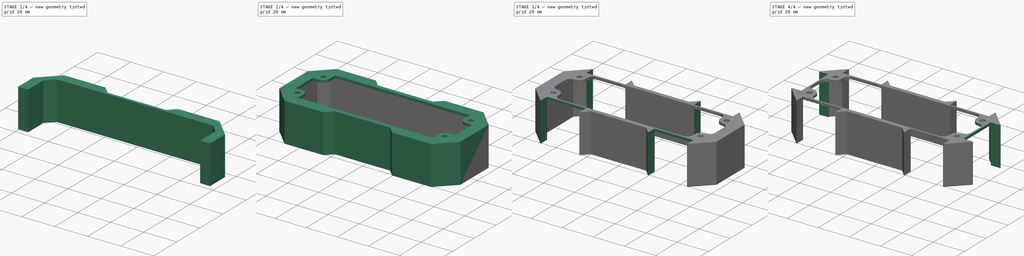
[diagram: build sequence overview — one tinted view per stage of 4, left to right]
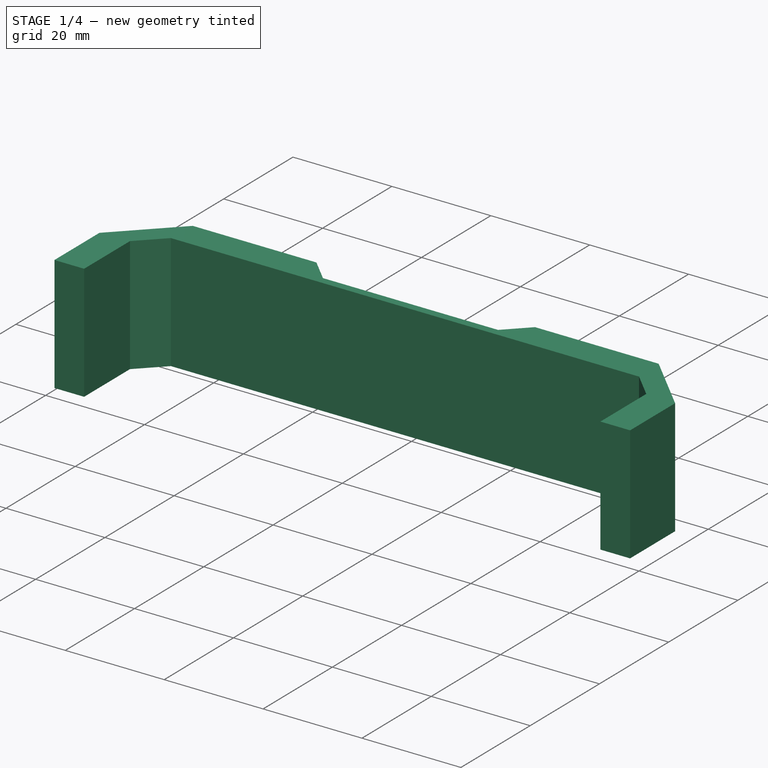
[diagram: stage 1 of 4 — iso view after this stage's code; geometry added in this stage tinted green]
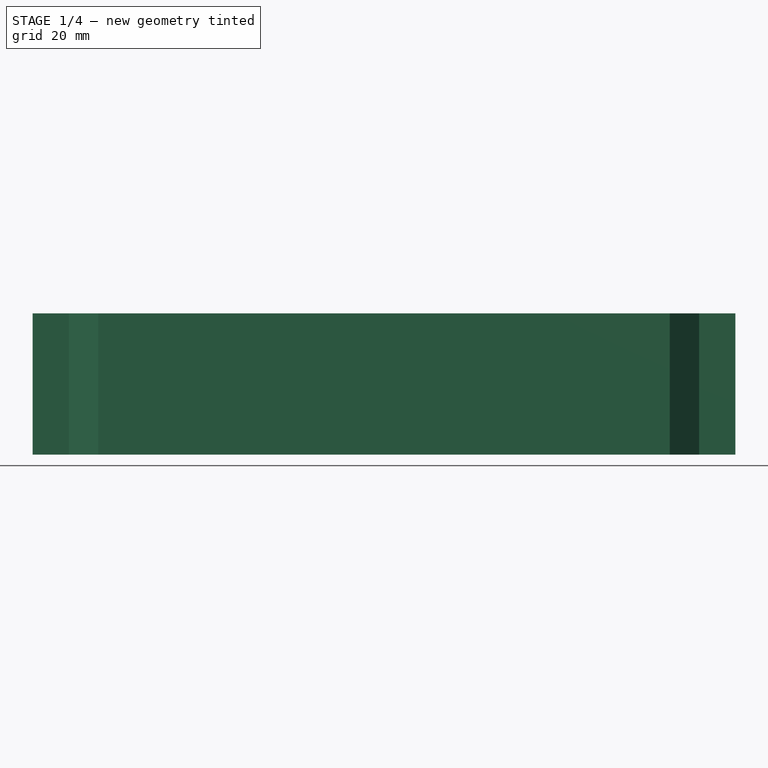
[diagram: stage 1 of 4 — front view after this stage's code; geometry added in this stage tinted green]
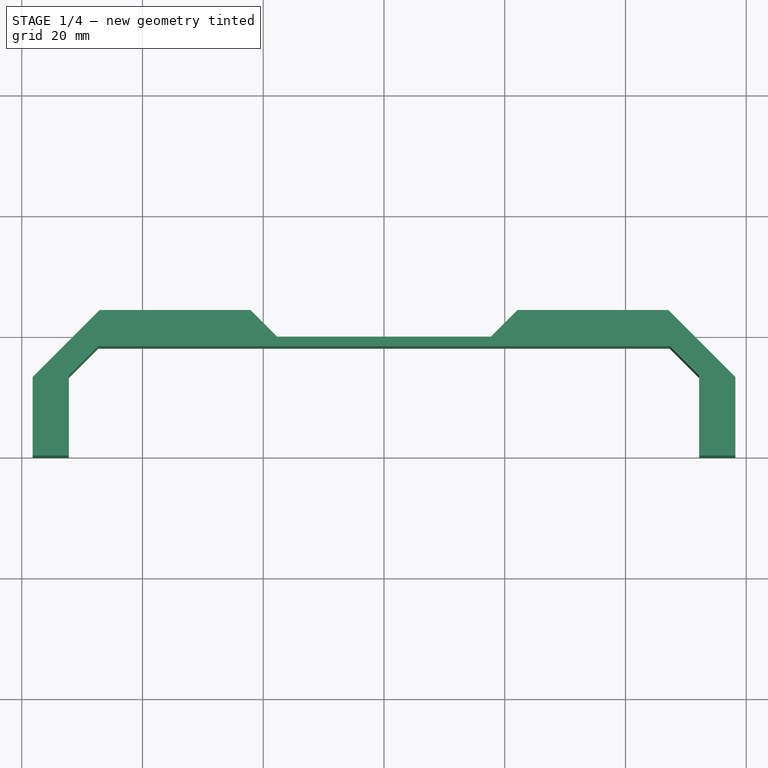
[diagram: stage 1 of 4 — top view after this stage's code; geometry added in this stage tinted green]
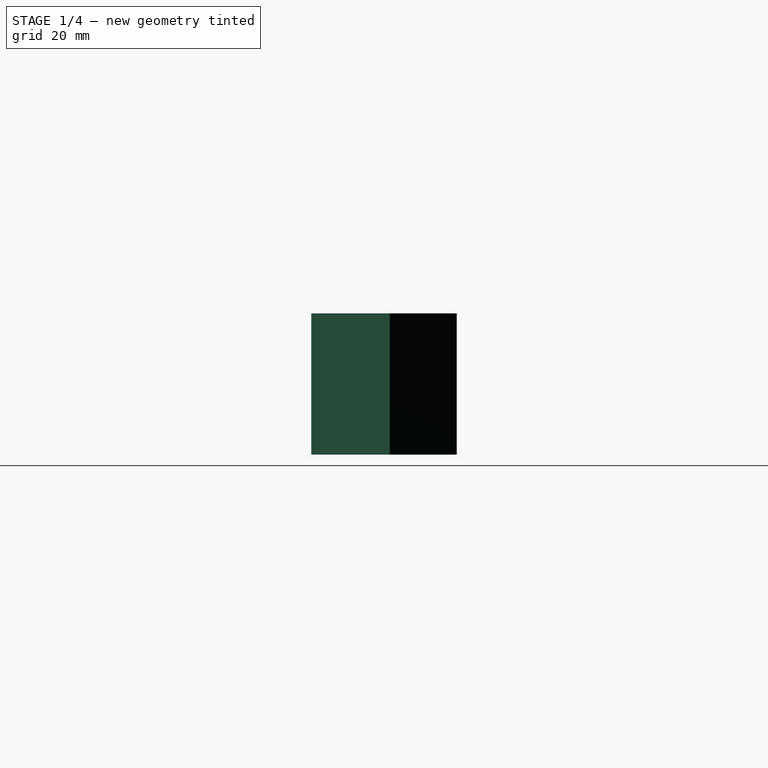
[diagram: stage 1 of 4 — right view after this stage's code; geometry added in this stage tinted green]
FCSTD DOCUMENT  (FreeCAD 1.1R20251111 (Git shallow))
Label: K93-10436-H7-L120_DockLink_Frame
License: All rights reserved
LicenseURL: https://en.wikipedia.org/wiki/All_rights_reserved
objects: Sketcher::SketchObject×6, PartDesign::Pocket×4, App::FeaturePython×3, Part::Feature×3, PartDesign::Pad×2, PartDesign::Mirrored×2, App::Point×1, App::DocumentObjectGroupPython×1, App::VarSet×1, PartDesign::Fillet×1, PartDesign::Body×1
note: 41 computed .brp shape members not serialized (recipe doc carries the construction recipe); baked Part::Feature solids carry a one-line shape summary decoded from their .brp

FEATURE [App::Point] Origin001
  Role = Origin
FEATURE [App::FeaturePython] Layer  label="0"  # WARN: FeaturePython — macro-defined, semantics opaque (R4)
FEATURE [App::FeaturePython] Layer001  label="none"  # WARN: FeaturePython — macro-defined, semantics opaque (R4)
FEATURE [App::FeaturePython] Layer002  label="Shape2DView"  # WARN: FeaturePython — macro-defined, semantics opaque (R4)
FEATURE [App::DocumentObjectGroupPython] LayerContainer  label="Layers"  # scripted group (container) (typed FeaturePython)
  Group = -> [Layer,Layer002,Layer001]
FEATURE [Part::Feature] Wire
  shape: bbox 3.2 x 3.2 x 2e-07 mm, 0 faces, 0 solids (baked)
FEATURE [Part::Feature] Wire001
  shape: bbox 3.2 x 3.2 x 2e-07 mm, 0 faces, 0 solids (baked)
FEATURE [Part::Feature] Wire002
  shape: bbox 98.17 x 35.99 x 2e-07 mm, 0 faces, 0 solids (baked)
FEATURE [App::VarSet] VarSet
  depth_feet = 26
  gap = 0.1
  thickness_wall = 1.6
FEATURE [Sketcher::SketchObject] Sketch  label="panel_reference"
  ArcFitTolerance = 1e-06
  ExternalTypes = [0]
  FullyConstrained = true
  MakeInternals = false
  expr: Constraints[35] = VarSet.gap
  expr: Constraints[46] = VarSet.thickness_wall
  expr: Constraints[49] = VarSet.gap * 3
  expr: Constraints[50] = VarSet.gap * 2
  sketch-geometry (16):
    g0: LineSegment [constr] StartX=52.0042 StartY=0 StartZ=0 EndX=52.0042 EndY=12.17 EndZ=0
    g1: ArcOfCircle [constr] CenterX=50.0143 CenterY=12.1873 CenterZ=0 NormalX=0 NormalY=0 NormalZ=1 AngleXU=0 Radius=1.99 StartAngle=6.27451 EndAngle=7.06367
    g2: LineSegment [constr] StartX=51.4283 StartY=13.5875 StartZ=0 EndX=47.5958 EndY=17.42 EndZ=0
    g3: ArcOfCircle [constr] CenterX=46.1874 CenterY=16 CenterZ=0 NormalX=0 NormalY=0 NormalZ=1 AngleXU=0 Radius=2 StartAngle=0.789489 EndAngle=1.57449
    g4: LineSegment [constr] StartX=46.18 StartY=18 StartZ=0 EndX=0 EndY=18 EndZ=0
    g5: Circle [constr] CenterX=47.32 CenterY=11.94 CenterZ=0 NormalX=0 NormalY=0 NormalZ=1 AngleXU=0 Radius=1.61
    g6: LineSegment StartX=52.2042 StartY=0 StartZ=0 EndX=58.2042 EndY=0 EndZ=0
    g7: LineSegment StartX=52.2042 StartY=0 StartZ=0 EndX=52.2042 EndY=13.2359 EndZ=0
    g8: LineSegment StartX=58.2042 StartY=0 StartZ=0 EndX=58.2042 EndY=13 EndZ=0
    g9: LineSegment StartX=47.3401 StartY=18.1 StartZ=0 EndX=52.2042 EndY=13.2359 EndZ=0
    g10: LineSegment StartX=47.1042 StartY=24.1 StartZ=0 EndX=58.2042 EndY=13 EndZ=0
    g11: LineSegment StartX=17.7042 StartY=19.7 StartZ=0 EndX=22.1042 EndY=24.1 EndZ=0
    g12: LineSegment StartX=22.1042 StartY=24.1 StartZ=0 EndX=47.1042 EndY=24.1 EndZ=0
    g13: LineSegment StartX=47.3401 StartY=18.1 StartZ=0 EndX=0 EndY=18.1 EndZ=0
    g14: LineSegment StartX=17.7042 StartY=19.7 StartZ=0 EndX=0 EndY=19.7 EndZ=0
    g15: LineSegment StartX=0 StartY=19.7 StartZ=0 EndX=0 EndY=18.1 EndZ=0
  constraints (52):
    c: Coincident(g3,g4)
    c: Coincident(g2,g3)
    c: Coincident(g1,g2)
    c: Coincident(g0,g1)
    c: PointOnObject(g4,g-2)
    c: Horizontal(g4)
    c: PointOnObject(g6,g-1)
    c: PointOnObject(g6,g-1)
    c: Distance(g4,g-1) = 18
    c: Vertical(g0)
    c: DistanceY(g-1,g0) = 12.17
    c: Distance(g1,g0) = 1.53
    c: Angle(g2,g0) = 2.35619
    c: Distance(g2,g2) = 5.42
    c: Distance(g3,g2) = 1.53
    c: DistanceX(g4,g4) = 46.18
    c: DistanceY(g-1,g2) = 17.42
    c: DistanceY(g-1,g5) = 11.94
    c: Diameter(g5) = 3.22
    c: DistanceX(g-1,g5) = 47.32
    c: Radius(g3) = 2
    c: Radius(g1) = 1.99
    c: PointOnObject(g0,g-1)
    c: Coincident(g7,g6)
    c: Vertical(g7)
    c: Coincident(g8,g6)
    c: Vertical(g8)
    c: Parallel(g2,g9)
    c: Parallel(g9,g10)
    c: Coincident(g9,g7)
    c: Coincident(g10,g8)
    c: Coincident(g12,g11)
    c: Horizontal(g12)
    c: Distance(g9,g12) = 6
    c: Coincident(g10,g12)
    c: Distance(g9,g4) = 0.1
    c: DistanceX(g12,g12) = 25
    c: Coincident(g13,g9)
    c: PointOnObject(g13,g-2)
    c: Horizontal(g13)
    c: Coincident(g14,g11)
    c: PointOnObject(g14,g-2)
    c: Horizontal(g14)
    c: Coincident(g15,g14)
    c: Coincident(g15,g13)
    c: Angle(g11,g14) = 2.35619
    c: DistanceY(g15,g15) = 1.6
    c: Distance(g6,g6) = 6
    c: DistanceY(g8,g8) = 13
    c: Distance(g9,g2) = 0.3
    c: Distance(g0,g7) = 0.2
    c: Distance(g9,g10) = 4.07586
FEATURE [PartDesign::Pad] Pad
  Direction = (0,0,1)
  Length = 23.4
  Length2 = 10
  Profile = -> Sketch
  ReferenceAxis = -> Sketch [N_Axis]
  Refine = true
  Reversed = true
  SideType = 0
  Suppressed = false
  Type = 0
  Type2 = 0
FEATURE [PartDesign::Mirrored] Mirrored
  BaseFeature = -> Pad
  MirrorPlane = -> YZ_Plane
  Refine = true
  Suppressed = false
  TransformMode = 1
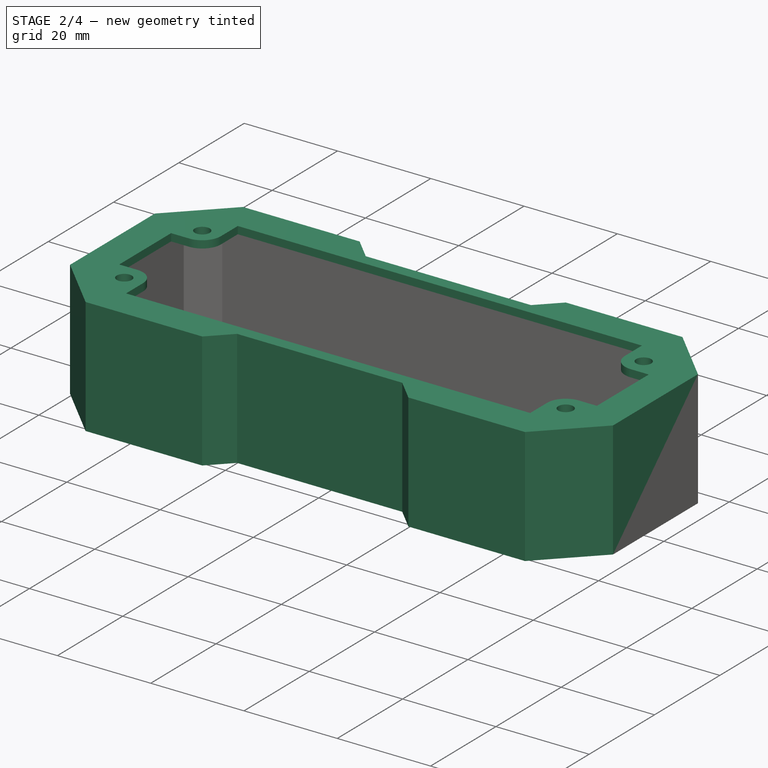
[diagram: stage 2 of 4 — iso view after this stage's code; geometry added in this stage tinted green]
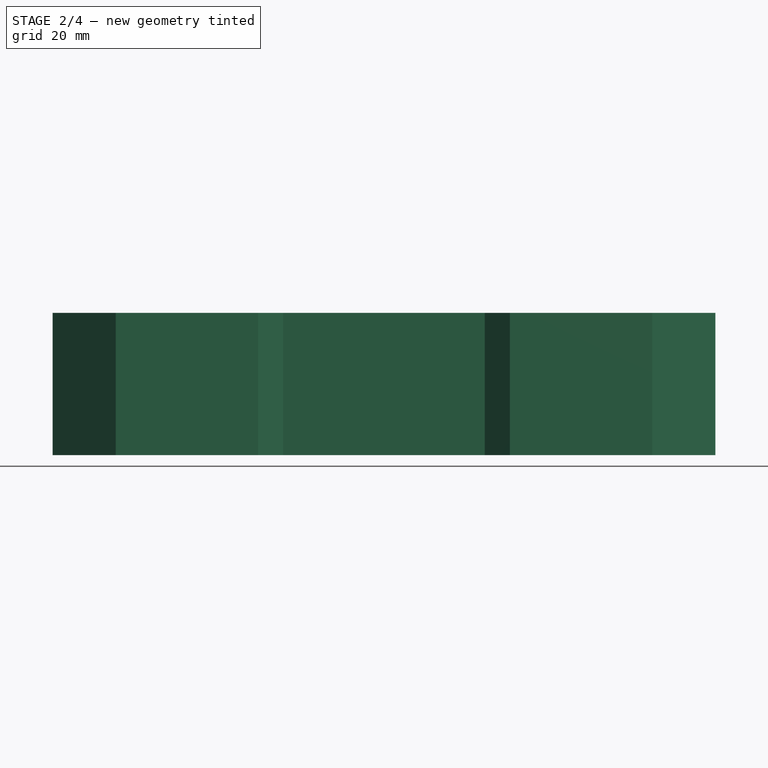
[diagram: stage 2 of 4 — front view after this stage's code; geometry added in this stage tinted green]
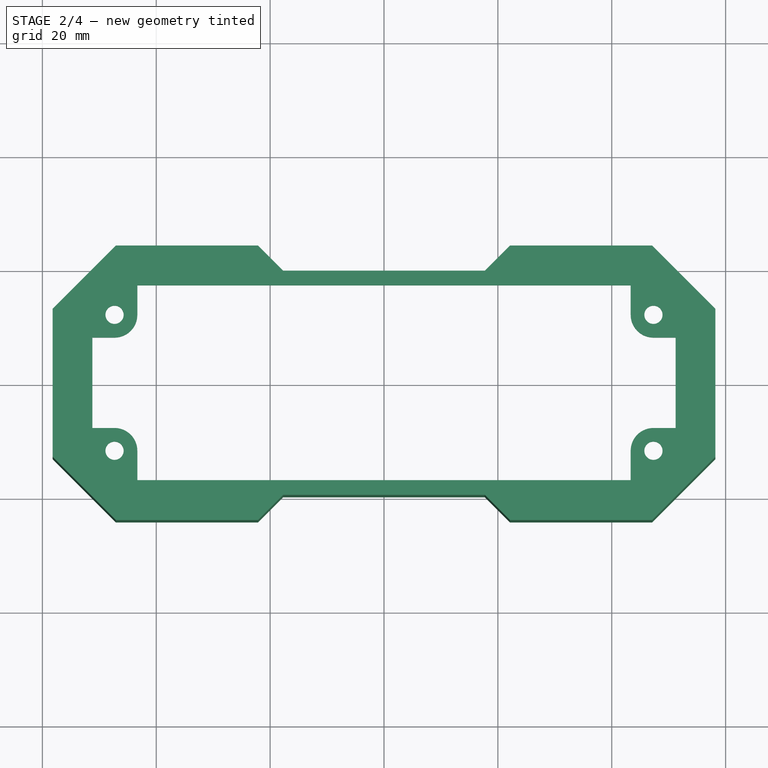
[diagram: stage 2 of 4 — top view after this stage's code; geometry added in this stage tinted green]
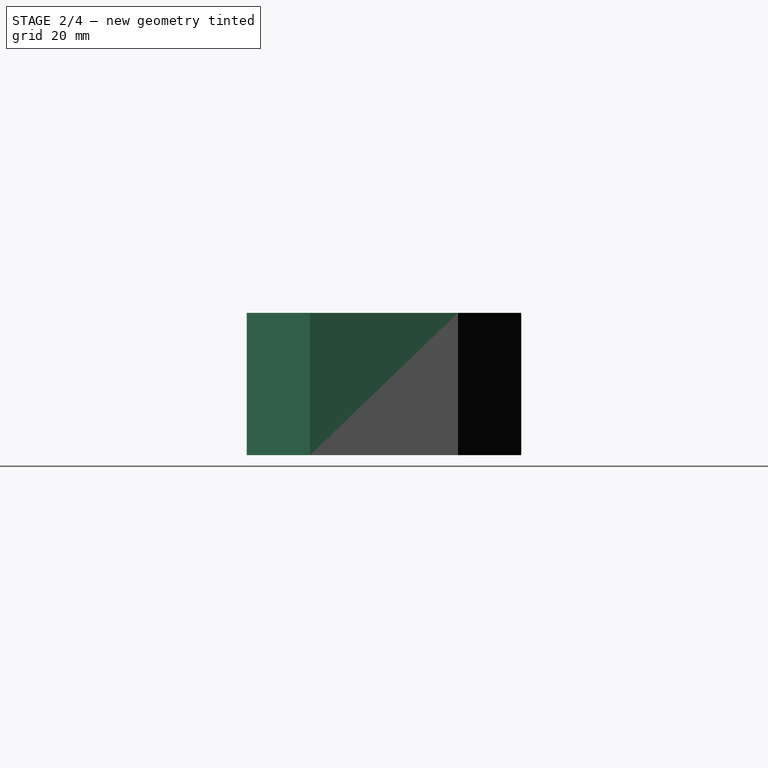
[diagram: stage 2 of 4 — right view after this stage's code; geometry added in this stage tinted green]
FEATURE [PartDesign::Mirrored] Mirrored001
  BaseFeature = -> Mirrored
  MirrorPlane = -> XZ_Plane
  Refine = true
  Suppressed = false
  TransformMode = 1
FEATURE [Sketcher::SketchObject] Sketch001  label="Sketch_Frontplate"
  ArcFitTolerance = 1e-06
  AttachmentSupport = -> [Mirrored001]
  ExternalGeometry = -> [Mirrored001]
  ExternalTypes = [0,0,0,0,0,0,0,0,0,0,0,0,0,0,0,0]
  FullyConstrained = true
  MakeInternals = false
  MapMode = 5
  Placement = pos=(0,0,-7.9e-15) rot=(0,0,1;0rad)
  sketch-geometry (25):
    g0: LineSegment [constr] StartX=-47.32 StartY=11.94 StartZ=0 EndX=-47.32 EndY=-11.94 EndZ=0
    g1: LineSegment [constr] StartX=-47.32 StartY=-11.94 StartZ=0 EndX=47.32 EndY=-11.94 EndZ=0
    g2: LineSegment [constr] StartX=47.32 StartY=-11.94 StartZ=0 EndX=47.32 EndY=11.94 EndZ=0
    g3: LineSegment [constr] StartX=47.32 StartY=11.94 StartZ=0 EndX=-47.32 EndY=11.94 EndZ=0
    g4: GeomPoint [constr] X=0 Y=0 Z=0
    g5: Circle CenterX=-47.32 CenterY=11.94 CenterZ=0 NormalX=0 NormalY=0 NormalZ=1 AngleXU=0 Radius=1.6
    g6: Circle CenterX=-47.32 CenterY=-11.94 CenterZ=0 NormalX=0 NormalY=0 NormalZ=1 AngleXU=0 Radius=1.6
    g7: Circle CenterX=47.32 CenterY=11.94 CenterZ=0 NormalX=0 NormalY=0 NormalZ=1 AngleXU=0 Radius=1.6
    g8: Circle CenterX=47.32 CenterY=-11.94 CenterZ=0 NormalX=0 NormalY=0 NormalZ=1 AngleXU=0 Radius=1.6
    g9: LineSegment StartX=-43.32 StartY=17.1 StartZ=0 EndX=43.32 EndY=17.1 EndZ=0
    g10: LineSegment StartX=-51.2042 StartY=7.94 StartZ=0 EndX=-51.2042 EndY=-7.94 EndZ=0
    g11: LineSegment StartX=51.2042 StartY=7.94 StartZ=0 EndX=51.2042 EndY=-7.94 EndZ=0
    g12: LineSegment StartX=-43.32 StartY=-17.1 StartZ=0 EndX=43.32 EndY=-17.1 EndZ=0
    g13: ArcOfCircle CenterX=-47.32 CenterY=11.94 CenterZ=0 NormalX=0 NormalY=0 NormalZ=1 AngleXU=0 Radius=4 StartAngle=4.71239 EndAngle=6.28319
    g14: ArcOfCircle CenterX=-47.32 CenterY=-11.94 CenterZ=0 NormalX=0 NormalY=0 NormalZ=1 AngleXU=0 Radius=4 StartAngle=0 EndAngle=1.5708
    g15: ArcOfCircle CenterX=47.32 CenterY=-11.94 CenterZ=0 NormalX=0 NormalY=0 NormalZ=1 AngleXU=0 Radius=4 StartAngle=1.5708 EndAngle=3.14159
    g16: ArcOfCircle CenterX=47.32 CenterY=11.94 CenterZ=0 NormalX=0 NormalY=0 NormalZ=1 AngleXU=0 Radius=4 StartAngle=3.14159 EndAngle=4.71239
    g17: LineSegment StartX=43.32 StartY=11.94 StartZ=0 EndX=43.32 EndY=17.1 EndZ=0
    g18: LineSegment StartX=-43.32 StartY=11.94 StartZ=0 EndX=-43.32 EndY=17.1 EndZ=0
    g19: LineSegment StartX=-47.32 StartY=7.94 StartZ=0 EndX=-51.2042 EndY=7.94 EndZ=0
    g20: LineSegment StartX=-47.32 StartY=-7.94 StartZ=0 EndX=-51.2042 EndY=-7.94 EndZ=0
    g21: LineSegment StartX=-43.32 StartY=-17.1 StartZ=0 EndX=-43.32 EndY=-11.94 EndZ=0
    g22: LineSegment StartX=47.32 StartY=7.94 StartZ=0 EndX=51.2042 EndY=7.94 EndZ=0
    g23: LineSegment StartX=47.32 StartY=-7.94 StartZ=0 EndX=51.2042 EndY=-7.94 EndZ=0
    g24: LineSegment StartX=43.32 StartY=-11.94 StartZ=0 EndX=43.32 EndY=-17.1 EndZ=0
  constraints (66):
    c: Coincident(g0,g1)
    c: Coincident(g1,g2)
    c: Coincident(g2,g3)
    c: Coincident(g3,g0)
    c: Vertical(g0)
    c: Vertical(g2)
    c: Horizontal(g1)
    c: Horizontal(g3)
    c: Symmetric(g2,g0,g4)
    c: Coincident(g4,g-1)
    c: Distance(g3,g-1) = 11.94
    c: Distance(g-2,g2) = 47.32
    c: Coincident(g5,g3)
    c: Coincident(g6,g0)
    c: Coincident(g7,g2)
    c: Coincident(g8,g1)
    c: Equal(g8,g7)
    c: Equal(g7,g6)
    c: Equal(g6,g5)
    c: Diameter(g5) = 3.2
    c: Vertical(g10)
    c: Vertical(g11)
    c: Symmetric(g9,g9,g-2)
    c: Symmetric(g12,g12,g-2)
    c: Coincident(g13,g3)
    c: PointOnObject(g13,g0)
    c: PointOnObject(g13,g3)
    c: Radius(g13) = 4
    c: Coincident(g14,g0)
    c: PointOnObject(g14,g0)
    c: PointOnObject(g14,g1)
    c: Coincident(g15,g1)
    c: PointOnObject(g15,g1)
    c: PointOnObject(g15,g2)
    c: Coincident(g16,g2)
    c: PointOnObject(g16,g2)
    c: PointOnObject(g16,g3)
    c: Coincident(g17,g16)
    c: PointOnObject(g17,g9)
    c: Vertical(g17)
    c: Vertical(g9,g17)
    c: Equal(g16,g15)
    c: Equal(g15,g14)
    c: Tangent(g18,g13) = -1.5708
    c: Coincident(g18,g9)
    c: Coincident(g19,g13)
    c: Coincident(g19,g10)
    c: Coincident(g20,g14)
    c: Coincident(g20,g10)
    c: Coincident(g21,g12)
    c: Coincident(g21,g14)
    c: Coincident(g22,g16)
    c: Coincident(g22,g11)
    c: Coincident(g23,g15)
    c: Coincident(g23,g11)
    c: Coincident(g24,g15)
    c: Coincident(g24,g12)
    c: Vertical(g24)
    c: Horizontal(g22)
    c: Horizontal(g23)
    c: Horizontal(g19)
    c: Horizontal(g20)
    c: Distance(g10,g-18) = 7
    c: Distance(g-6,g9) = 2.6
    c: Distance(g-14,g12) = 2.6
    c: Distance(g-10,g11) = 7
FEATURE [PartDesign::Pad] Pad001
  BaseFeature = -> Mirrored001
  Direction = (0,0,1)
  Length = 1.6
  Length2 = 10
  Profile = -> Sketch001
  ReferenceAxis = -> Sketch001 [N_Axis]
  Refine = true
  SideType = 0
  Suppressed = false
  Type = 0
  Type2 = 0
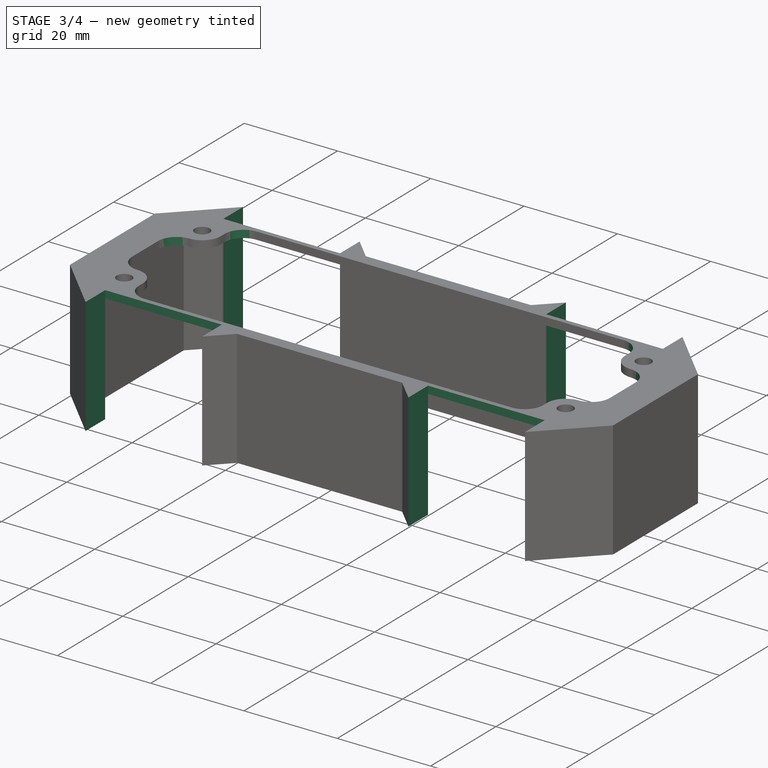
[diagram: stage 3 of 4 — iso view after this stage's code; geometry added in this stage tinted green]
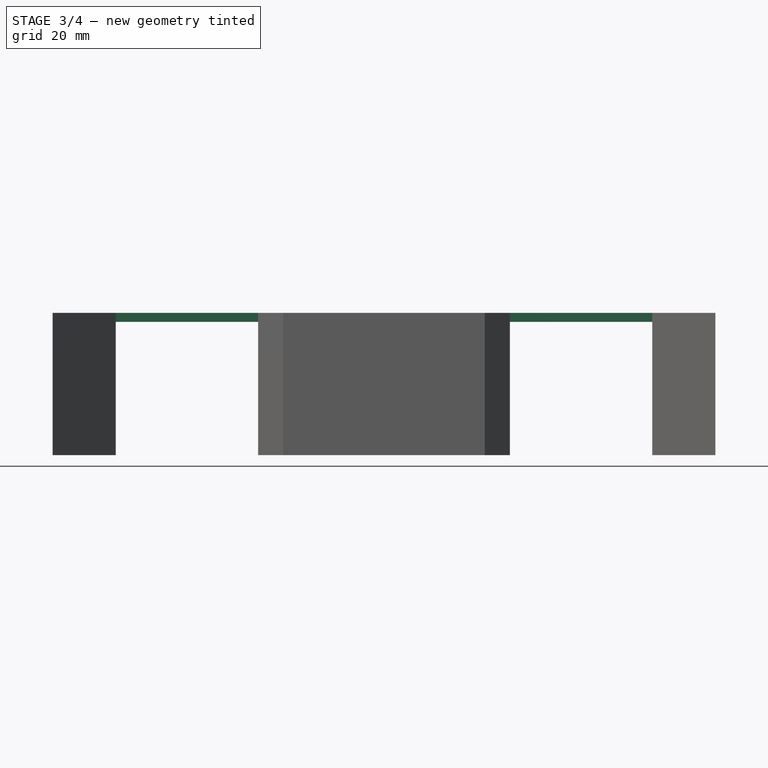
[diagram: stage 3 of 4 — front view after this stage's code; geometry added in this stage tinted green]
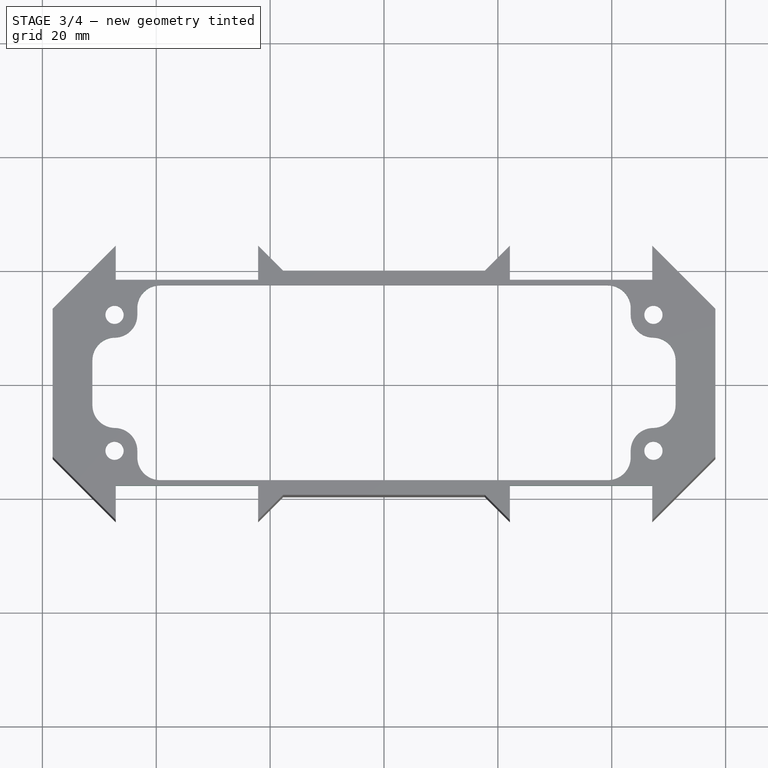
[diagram: stage 3 of 4 — top view after this stage's code; geometry added in this stage tinted green]
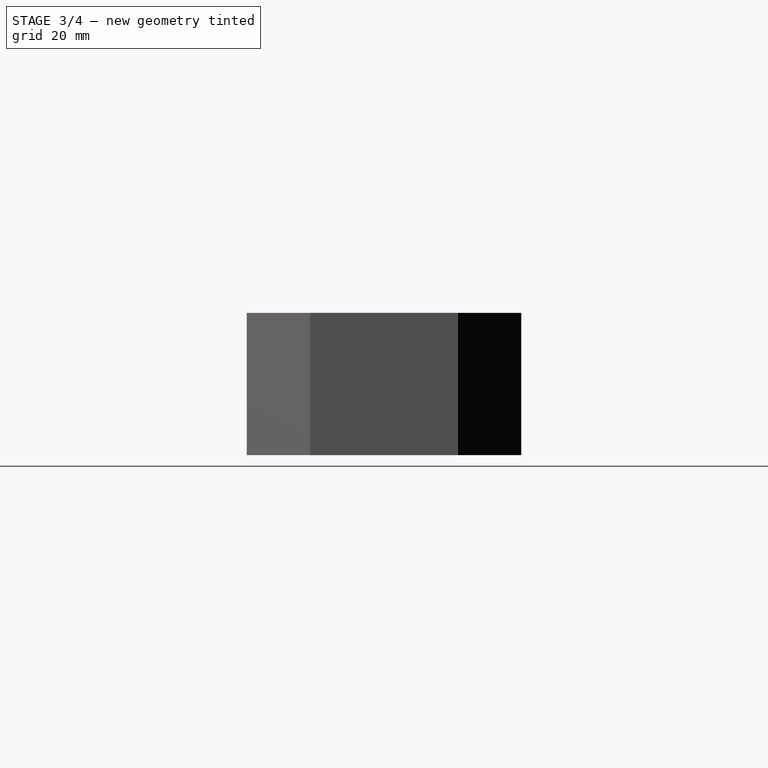
[diagram: stage 3 of 4 — right view after this stage's code; geometry added in this stage tinted green]
FEATURE [PartDesign::Fillet] Fillet
  Base = -> Pad001 [Edge112,Edge99,Edge100,Edge103,Edge104,Edge107,Edge108,Edge111]
  BaseFeature = -> Pad001
  Radius = 4
  Refine = true
  SupportTransform = false
  Suppressed = false
  UseAllEdges = false
FEATURE [Sketcher::SketchObject] Sketch002
  ArcFitTolerance = 1e-06
  AttachmentSupport = -> [Fillet]
  ExternalGeometry = -> [Fillet]
  ExternalTypes = [0,0]
  FullyConstrained = true
  MakeInternals = false
  MapMode = 5
  Placement = pos=(6.8e-15,24.1,0) rot=(0,0.707107,0.707107;3.14159rad)
FEATURE [PartDesign::Pocket] Pocket
  BaseFeature = -> Fillet
  Direction = (0,-1,2e-16)
  Length = 6
  Length2 = 5
  Profile = -> Sketch002
  ReferenceAxis = -> Sketch002 [N_Axis]
  Refine = true
  SideType = 0
  Suppressed = false
  Type = 0
  Type2 = 0
FEATURE [Sketcher::SketchObject] Sketch003
  ArcFitTolerance = 1e-06
  AttachmentSupport = -> [Pocket]
  ExternalGeometry = -> [Pocket]
  ExternalTypes = [0,0]
  FullyConstrained = true
  MakeInternals = false
  MapMode = 5
  Placement = pos=(6.8e-15,-24.1,-1.06e-14) rot=(1,0,0;1.5708rad)
FEATURE [PartDesign::Pocket] Pocket001
  BaseFeature = -> Pocket
  Direction = (0,1,-2e-16)
  Length = 6
  Length2 = 5
  Profile = -> Sketch003
  ReferenceAxis = -> Sketch003 [N_Axis]
  Refine = true
  SideType = 0
  Suppressed = false
  Type = 0
  Type2 = 0
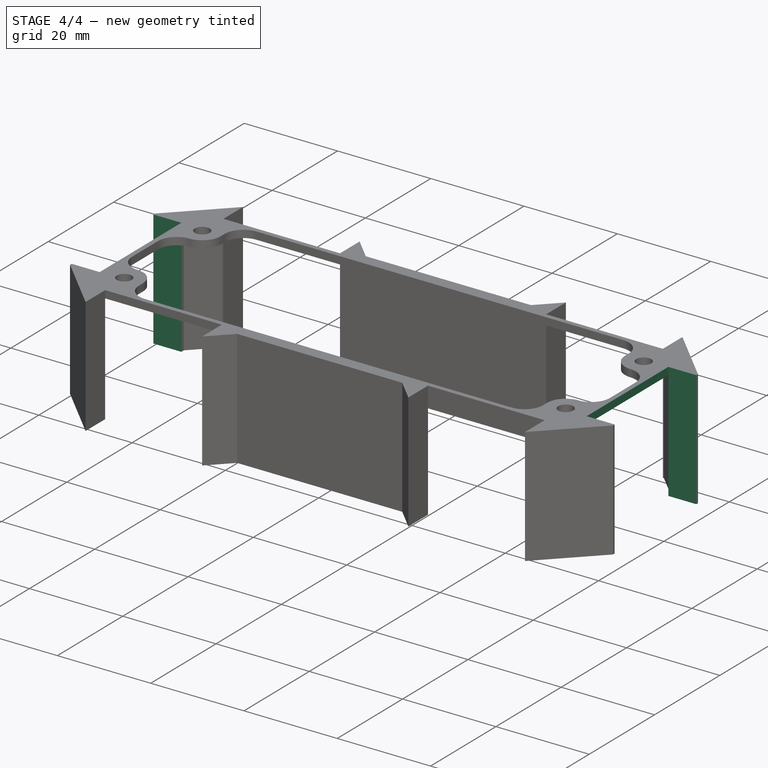
[diagram: stage 4 of 4 — iso view after this stage's code; geometry added in this stage tinted green]
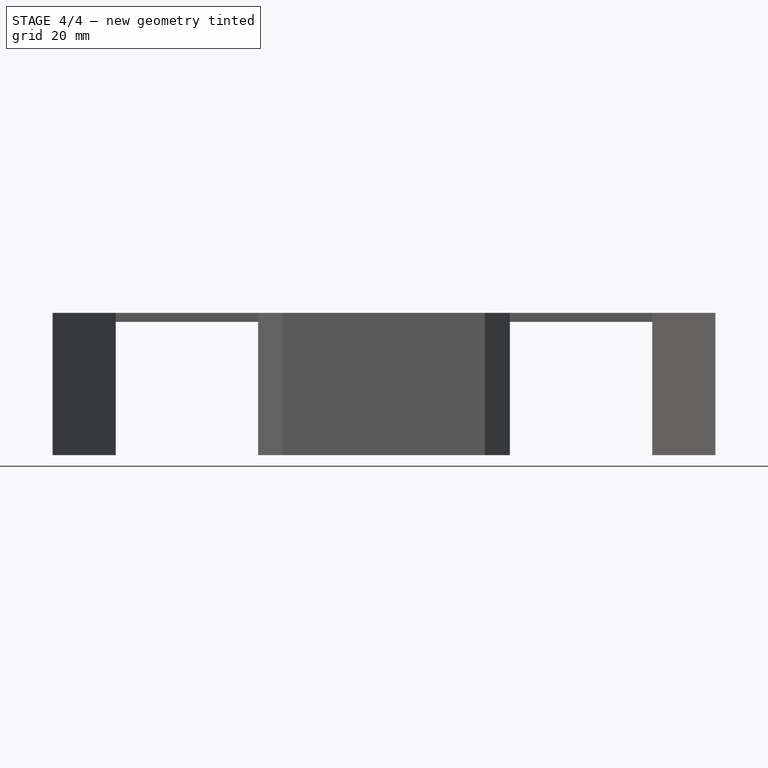
[diagram: stage 4 of 4 — front view after this stage's code; geometry added in this stage tinted green]
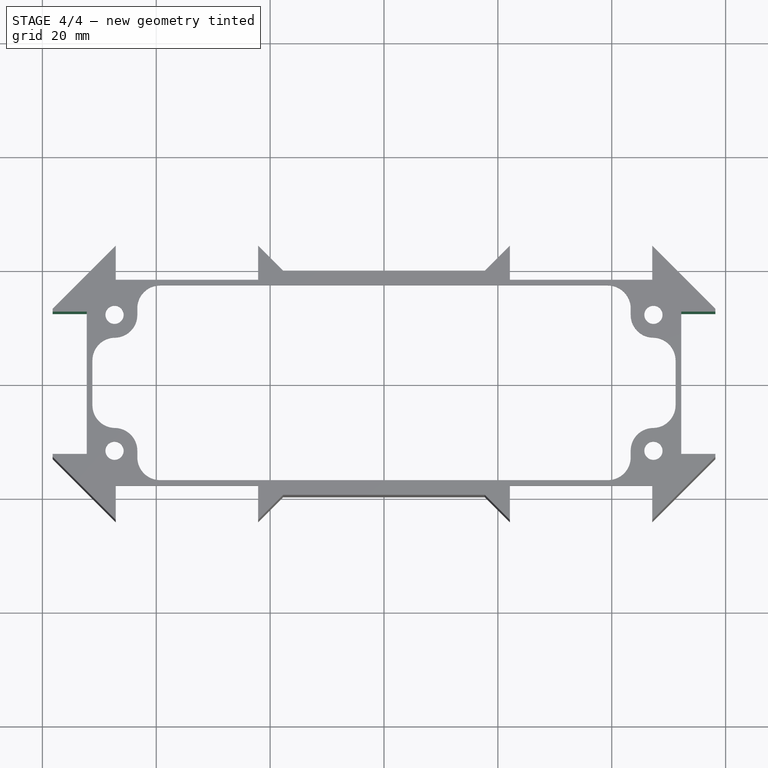
[diagram: stage 4 of 4 — top view after this stage's code; geometry added in this stage tinted green]
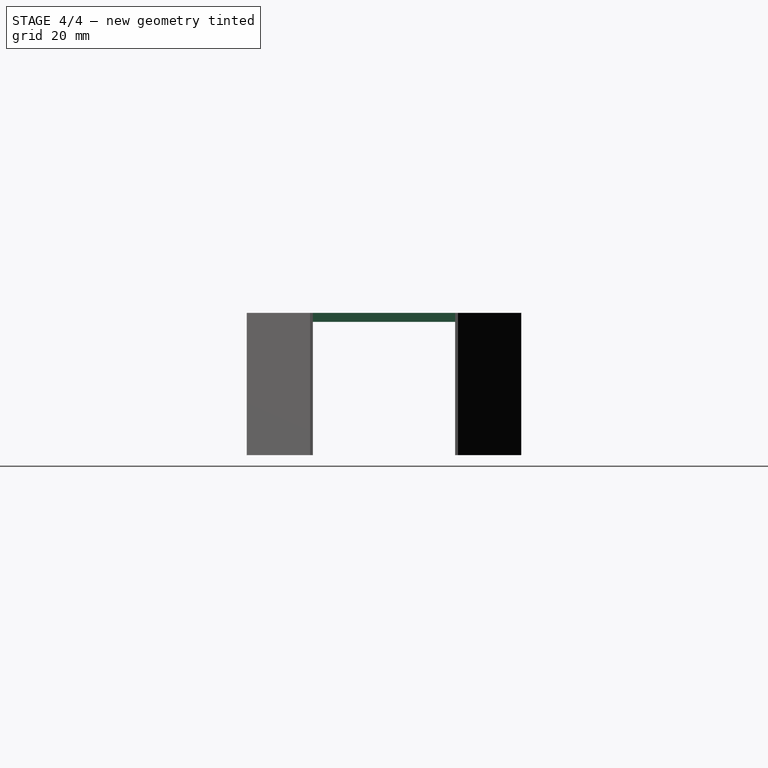
[diagram: stage 4 of 4 — right view after this stage's code; geometry added in this stage tinted green]
FEATURE [Sketcher::SketchObject] Sketch004
  ArcFitTolerance = 1e-06
  AttachmentSupport = -> [Pocket001]
  ExternalGeometry = -> [Pocket001]
  ExternalTypes = [0,0,0,0]
  FullyConstrained = true
  MakeInternals = false
  MapMode = 5
  Placement = pos=(-58.2042,0,-1.7e-14) rot=(0.57735,-0.57735,-0.57735;2.0944rad)
  sketch-geometry (8):
    g0: LineSegment [constr] StartX=-13 StartY=1.6 StartZ=0 EndX=13 EndY=-23.4 EndZ=0
    g1: LineSegment [constr] StartX=13 StartY=1.6 StartZ=0 EndX=-13 EndY=-23.4 EndZ=0
    g2: GeomPoint [constr] X=0 Y=-10.9 Z=0
    g3: LineSegment StartX=-12.5 StartY=1.6 StartZ=0 EndX=-12.5 EndY=-23.4 EndZ=0
    g4: LineSegment StartX=-12.5 StartY=-23.4 StartZ=0 EndX=12.5 EndY=-23.4 EndZ=0
    g5: LineSegment StartX=12.5 StartY=-23.4 StartZ=0 EndX=12.5 EndY=1.6 EndZ=0
    g6: LineSegment StartX=12.5 StartY=1.6 StartZ=0 EndX=-12.5 EndY=1.6 EndZ=0
    g7: GeomPoint [constr] X=0 Y=-10.9 Z=0
  constraints (17):
    c: Coincident(g0,g-3)
    c: Coincident(g0,g-6)
    c: Coincident(g1,g-4)
    c: Coincident(g1,g-5)
    c: Symmetric(g1,g1,g2)
    c: Coincident(g3,g4)
    c: Coincident(g4,g5)
    c: Coincident(g5,g6)
    c: Coincident(g6,g3)
    c: Vertical(g3)
    c: Vertical(g5)
    c: Horizontal(g4)
    c: Horizontal(g6)
    c: Symmetric(g5,g3,g7)
    c: Coincident(g7,g2)
    c: Equal(g5,g6)
    c: DistanceX(g6,g6) = 25
FEATURE [PartDesign::Pocket] Pocket002
  BaseFeature = -> Pocket001
  Direction = (1,0,0)
  Length = 6
  Length2 = 5
  Profile = -> Sketch004
  ReferenceAxis = -> Sketch004 [N_Axis]
  Refine = true
  SideType = 0
  Suppressed = false
  Type = 0
  Type2 = 0
FEATURE [Sketcher::SketchObject] Sketch005
  ArcFitTolerance = 1e-06
  AttachmentSupport = -> [Pocket002]
  ExternalGeometry = -> [Pocket002]
  ExternalTypes = [0,0,0,0]
  FullyConstrained = true
  MakeInternals = false
  MapMode = 5
  Placement = pos=(58.2042,0,0) rot=(0.57735,0.57735,0.57735;2.0944rad)
  sketch-geometry (8):
    g0: LineSegment [constr] StartX=-13 StartY=-23.4 StartZ=0 EndX=13 EndY=1.6 EndZ=0
    g1: LineSegment [constr] StartX=13 StartY=-23.4 StartZ=0 EndX=-13 EndY=1.6 EndZ=0
    g2: GeomPoint [constr] X=3e-16 Y=-10.9 Z=0
    g3: LineSegment StartX=-12.5 StartY=1.6 StartZ=0 EndX=-12.5 EndY=-23.4 EndZ=0
    g4: LineSegment StartX=-12.5 StartY=-23.4 StartZ=0 EndX=12.5 EndY=-23.4 EndZ=0
    g5: LineSegment StartX=12.5 StartY=-23.4 StartZ=0 EndX=12.5 EndY=1.6 EndZ=0
    g6: LineSegment StartX=12.5 StartY=1.6 StartZ=0 EndX=-12.5 EndY=1.6 EndZ=0
    g7: GeomPoint [constr] X=3e-16 Y=-10.9 Z=0
  constraints (17):
    c: Coincident(g0,g-6)
    c: Coincident(g0,g-5)
    c: Coincident(g1,g-4)
    c: Coincident(g1,g-3)
    c: Symmetric(g1,g1,g2)
    c: Coincident(g3,g4)
    c: Coincident(g4,g5)
    c: Coincident(g5,g6)
    c: Coincident(g6,g3)
    c: Vertical(g3)
    c: Vertical(g5)
    c: Horizontal(g4)
    c: Horizontal(g6)
    c: Symmetric(g5,g3,g7)
    c: Coincident(g7,g2)
    c: Equal(g5,g6)
    c: DistanceX(g6,g6) = 25
FEATURE [PartDesign::Pocket] Pocket003
  BaseFeature = -> Pocket002
  Direction = (-1,0,0)
  Length = 6
  Length2 = 5
  Profile = -> Sketch005
  ReferenceAxis = -> Sketch005 [N_Axis]
  Refine = true
  SideType = 0
  Suppressed = false
  Type = 0
  Type2 = 0
FEATURE [PartDesign::Body] Body  label="K93-10436-H7-L120_DockLink_Frame"
  AllowCompound = true
  Group = -> [Sketch,Pad,Mirrored,Mirrored001,Sketch001,Pad001,Fillet,Sketch002,Pocket,Sketch003,Pocket001,Sketch004,Pocket002,Sketch005,Pocket003]
  Origin = -> Origin
  Tip = -> Pocket003
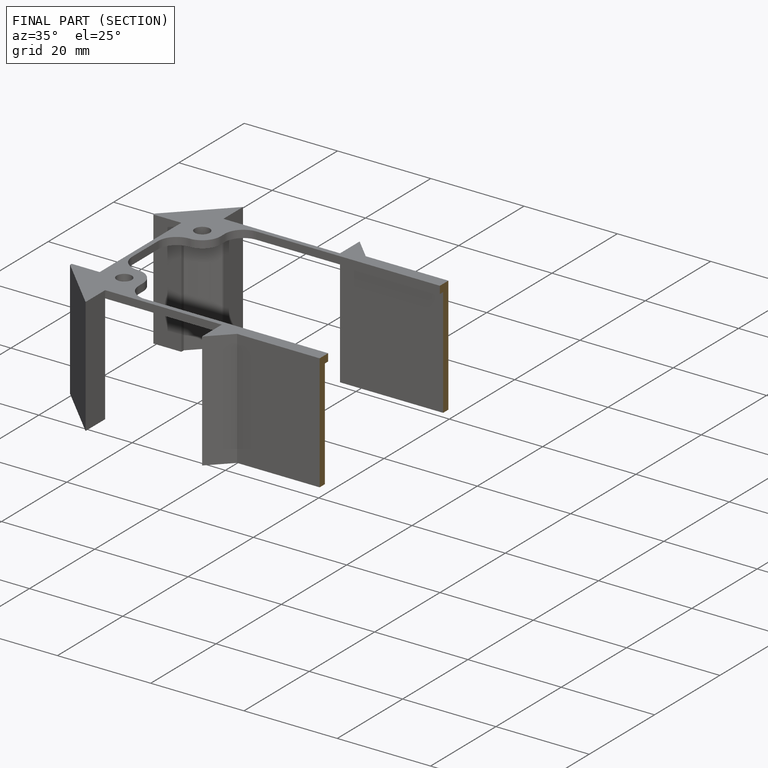
[diagram: finished part — half-section view (interior)]
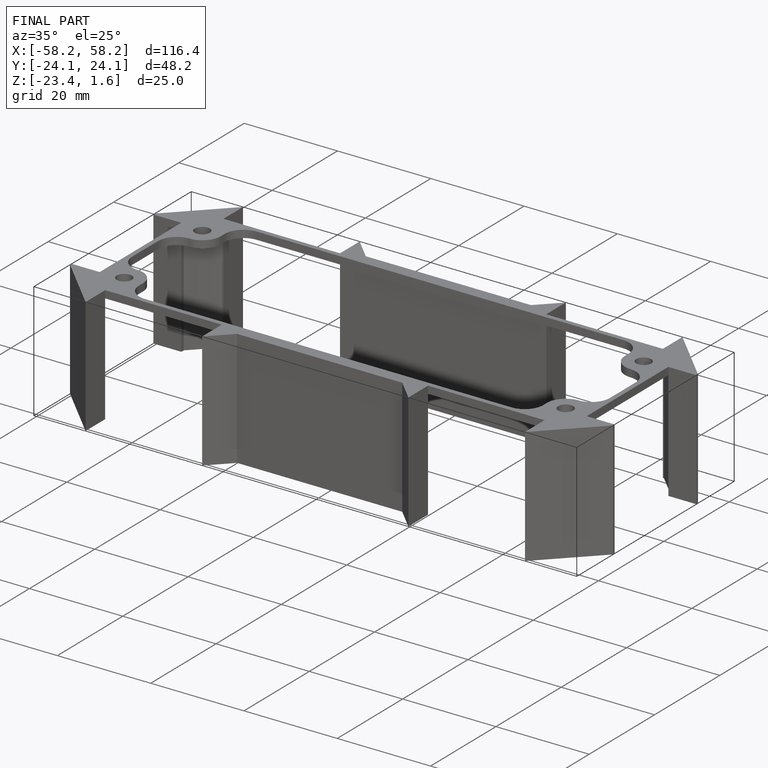
[diagram: finished part — iso view with bounding-box wireframe]
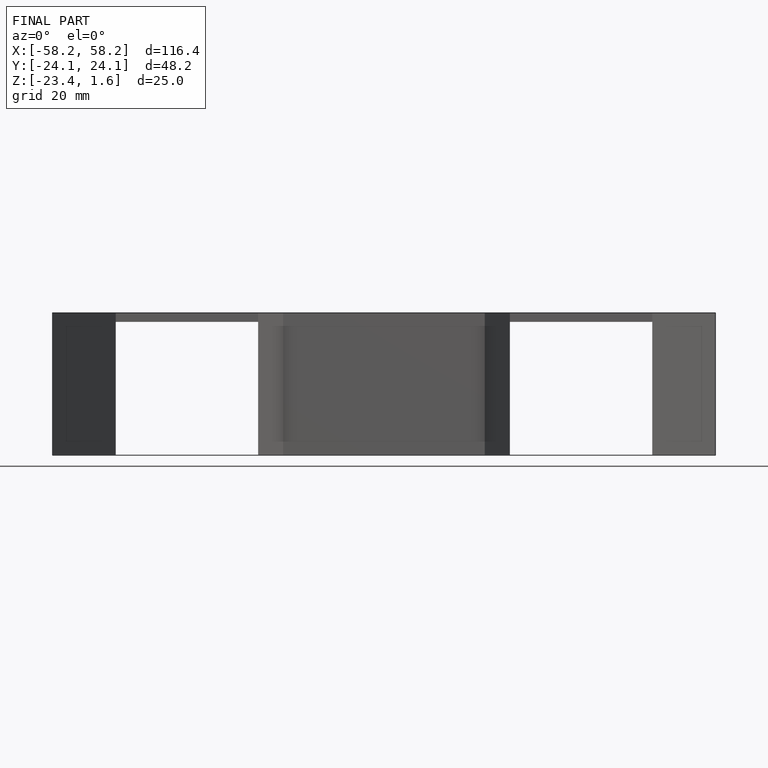
[diagram: finished part — front view with bounding-box wireframe]
